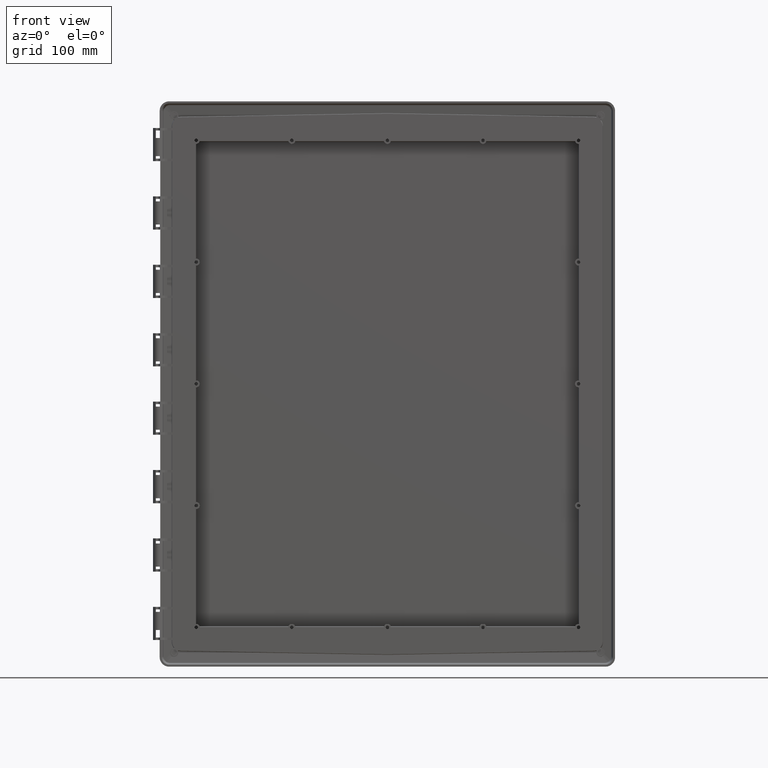
[diagram: clean part render]
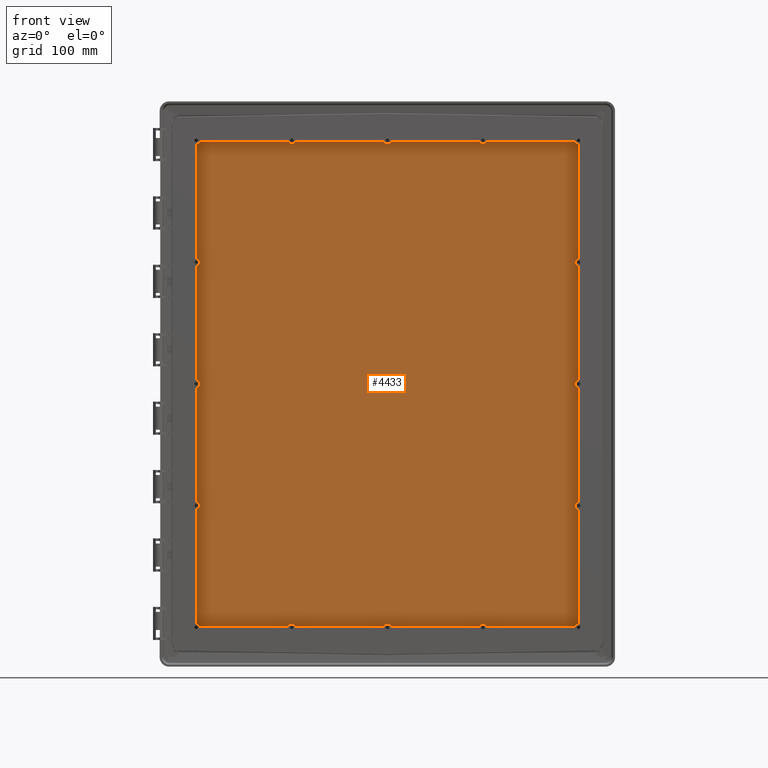
[diagram: same view with one face highlighted and labeled with its STEP entity id]
A machine part, front view. The second image highlights one B-rep face of the part: STEP entity #4433.
In plain terms, the highlighted planar face has unit normal (0, 1, 0).
Its self-contained STEP definition (entity closure, byte-faithful):
#93 = AXIS2_PLACEMENT_3D ( 'NONE', #5521, #3291, #1086 ) ;
#129 = CARTESIAN_POINT ( 'NONE',  ( -186.5000000000000000, 26.39999999999999900, 121.0000000000000000 ) ) ;
#279 = AXIS2_PLACEMENT_3D ( 'NONE', #19637, #10863, #8642 ) ;
#508 = CARTESIAN_POINT ( 'NONE',  ( 189.9317312209834900, 26.39999999999999900, -238.5006658670810100 ) ) ;
#590 = CARTESIAN_POINT ( 'NONE',  ( -186.7042932951999900, 26.39999999999999900, -240.8217312209999900 ) ) ;
#615 = CARTESIAN_POINT ( 'NONE',  ( 0.0000000000000000000, 26.39999999999999900, -242.0000000000000000 ) ) ;
#791 = CARTESIAN_POINT ( 'NONE',  ( -91.70429329514972500, 26.39999999999999900, 240.8217312209834800 ) ) ;
#892 = DIRECTION ( 'NONE',  ( 0.0000000000000000000, 1.000000000000000000, 0.0000000000000000000 ) ) ;
#1014 = ORIENTED_EDGE ( 'NONE', *, *, #15368, .F. ) ;
#1057 = DIRECTION ( 'NONE',  ( 0.0000000000000000000, 1.000000000000000000, 0.0000000000000000000 ) ) ;
#1086 = DIRECTION ( 'NONE',  ( 0.01950536543805190700, 0.0000000000000000000, 0.9998097522624631600 ) ) ;
#1118 = VECTOR ( 'NONE', #10152, 1000.000000000000000 ) ;
#1220 = ORIENTED_EDGE ( 'NONE', *, *, #4466, .F. ) ;
#1332 = EDGE_CURVE ( 'NONE', #5592, #14996, #8986, .T. ) ;
#1475 = ORIENTED_EDGE ( 'NONE', *, *, #1332, .F. ) ;
#1510 = ORIENTED_EDGE ( 'NONE', *, *, #6775, .T. ) ;
#1543 = CARTESIAN_POINT ( 'NONE',  ( 189.9317312209834700, 26.39999999999999900, 117.5006658670810500 ) ) ;
#1606 = DIRECTION ( 'NONE',  ( 0.01950536543805190700, 0.0000000000000000000, -0.9998097522624631600 ) ) ;
#1607 = CIRCLE ( 'NONE', #7530, 3.500000000000000000 ) ;
#1706 = ORIENTED_EDGE ( 'NONE', *, *, #6682, .T. ) ;
#1752 = AXIS2_PLACEMENT_3D ( 'NONE', #1792, #10174, #7915 ) ;
#1790 = AXIS2_PLACEMENT_3D ( 'NONE', #21141, #5775, #3568 ) ;
#1792 = CARTESIAN_POINT ( 'NONE',  ( -95.00000000000000000, 26.39999999999999900, -242.0000000000000000 ) ) ;
#1797 = DIRECTION ( 'NONE',  ( 0.9416304870983763800, 0.0000000000000000000, -0.3366482225808931100 ) ) ;
#1821 = EDGE_CURVE ( 'NONE', #5917, #5980, #20546, .T. ) ;
#1971 = DIRECTION ( 'NONE',  ( 1.000000000000000000, 0.0000000000000000000, 0.0000000000000000000 ) ) ;
#2011 = CARTESIAN_POINT ( 'NONE',  ( -3.295706704850258200, 26.39999999999999900, -240.8217312209834800 ) ) ;
#2033 = EDGE_CURVE ( 'NONE', #13864, #7621, #18724, .T. ) ;
#2148 = DIRECTION ( 'NONE',  ( -0.01950536543805185500, 0.0000000000000000000, -0.9998097522624631600 ) ) ;
#2166 = DIRECTION ( 'NONE',  ( 0.0000000000000000000, 1.000000000000000000, 0.0000000000000000000 ) ) ;
#2187 = CARTESIAN_POINT ( 'NONE',  ( 190.0000000000000000, 26.39999999999999900, 0.0000000000000000000 ) ) ;
#2560 = LINE ( 'NONE', #8696, #5410 ) ;
#2664 = VECTOR ( 'NONE', #9492, 1000.000000000000000 ) ;
#2708 = DIRECTION ( 'NONE',  ( 0.01950536543805185500, 0.0000000000000000000, 0.9998097522624631600 ) ) ;
#2800 = AXIS2_PLACEMENT_3D ( 'NONE', #16634, #14404, #12193 ) ;
#2810 = LINE ( 'NONE', #590, #4162 ) ;
#2851 = CARTESIAN_POINT ( 'NONE',  ( 189.9317312209834900, 26.39999999999999900, -124.4993341329189500 ) ) ;
#2901 = AXIS2_PLACEMENT_3D ( 'NONE', #615, #13405, #11193 ) ;
#2913 = CIRCLE ( 'NONE', #13986, 3.499999999999992000 ) ;
#2988 = AXIS2_PLACEMENT_3D ( 'NONE', #8384, #6149, #3949 ) ;
#3103 = CARTESIAN_POINT ( 'NONE',  ( -190.0000000000000000, 26.39999999999999900, 121.0000000000000000 ) ) ;
#3116 = FACE_OUTER_BOUND ( 'NONE', #16223, .T. ) ;
#3210 = DIRECTION ( 'NONE',  ( -0.01950536543805182800, 0.0000000000000000000, -0.9998097522624631600 ) ) ;
#3216 = ORIENTED_EDGE ( 'NONE', *, *, #17275, .T. ) ;
#3246 = CARTESIAN_POINT ( 'NONE',  ( -189.9317312209834700, 26.39999999999999900, -238.5006658670810400 ) ) ;
#3291 = DIRECTION ( 'NONE',  ( 0.0000000000000000000, 1.000000000000000000, 0.0000000000000000000 ) ) ;
#3309 = VECTOR ( 'NONE', #8760, 1000.000000000000000 ) ;
#3352 = DIRECTION ( 'NONE',  ( -0.9416304870983763800, 0.0000000000000000000, -0.3366482225808931100 ) ) ;
#3554 = EDGE_CURVE ( 'NONE', #5980, #6071, #19289, .T. ) ;
#3568 = DIRECTION ( 'NONE',  ( -0.9416304870983763800, 0.0000000000000000000, 0.3366482225808931100 ) ) ;
#3569 = VECTOR ( 'NONE', #14982, 1000.000000000000000 ) ;
#3740 = EDGE_CURVE ( 'NONE', #7561, #14431, #4659, .T. ) ;
#3830 = DIRECTION ( 'NONE',  ( 0.0000000000000000000, -1.000000000000000000, 0.0000000000000000000 ) ) ;
#3949 = DIRECTION ( 'NONE',  ( -0.01950536543803597200, 0.0000000000000000000, -0.9998097522624636000 ) ) ;
#4016 = DIRECTION ( 'NONE',  ( 0.0000000000000000000, 1.000000000000000000, 0.0000000000000000000 ) ) ;
#4048 = EDGE_CURVE ( 'NONE', #4698, #4637, #2810, .T. ) ;
#4162 = VECTOR ( 'NONE', #19931, 1000.000000000000000 ) ;
#4192 = CARTESIAN_POINT ( 'NONE',  ( -91.70429329515999900, 26.39999999999999900, -240.8217312209999900 ) ) ;
#4193 = CARTESIAN_POINT ( 'NONE',  ( -189.9317312209834900, 26.39999999999999900, 117.5006658670810500 ) ) ;
#4230 = CIRCLE ( 'NONE', #2901, 3.500000000000001800 ) ;
#4290 = ORIENTED_EDGE ( 'NONE', *, *, #16830, .T. ) ;
#4387 = DIRECTION ( 'NONE',  ( 0.0000000000000000000, 0.0000000000000000000, -1.000000000000000000 ) ) ;
#4413 = ORIENTED_EDGE ( 'NONE', *, *, #8150, .F. ) ;
#4433 = ADVANCED_FACE ( 'NONE', ( #3116 ), #18777, .F. ) ;
#4466 = EDGE_CURVE ( 'NONE', #6912, #6698, #20411, .T. ) ;
#4497 = ORIENTED_EDGE ( 'NONE', *, *, #6413, .T. ) ;
#4637 = VERTEX_POINT ( 'NONE', #20037 ) ;
#4659 = LINE ( 'NONE', #8583, #5397 ) ;
#4698 = VERTEX_POINT ( 'NONE', #19036 ) ;
#4719 = EDGE_CURVE ( 'NONE', #5134, #5362, #18928, .T. ) ;
#4782 = VERTEX_POINT ( 'NONE', #2011 ) ;
#4788 = CIRCLE ( 'NONE', #19442, 3.500000000000000900 ) ;
#4817 = CARTESIAN_POINT ( 'NONE',  ( -189.9317312209834900, 26.39999999999999900, -117.5006658670810500 ) ) ;
#4926 = DIRECTION ( 'NONE',  ( 0.0000000000000000000, 1.000000000000000000, 0.0000000000000000000 ) ) ;
#4962 = VERTEX_POINT ( 'NONE', #12814 ) ;
#4995 = CARTESIAN_POINT ( 'NONE',  ( 91.70429329514972500, 26.39999999999999900, 240.8217312209834800 ) ) ;
#5134 = VERTEX_POINT ( 'NONE', #12546 ) ;
#5163 = CIRCLE ( 'NONE', #279, 3.500000000000004900 ) ;
#5195 = VERTEX_POINT ( 'NONE', #6532 ) ;
#5264 = CIRCLE ( 'NONE', #14597, 3.500000000000000900 ) ;
#5304 = EDGE_CURVE ( 'NONE', #14845, #14996, #17398, .T. ) ;
#5321 = VERTEX_POINT ( 'NONE', #13977 ) ;
#5343 = ORIENTED_EDGE ( 'NONE', *, *, #6559, .T. ) ;
#5362 = VERTEX_POINT ( 'NONE', #15138 ) ;
#5397 = VECTOR ( 'NONE', #6337, 1000.000000000000000 ) ;
#5410 = VECTOR ( 'NONE', #6448, 1000.000000000000000 ) ;
#5430 = ORIENTED_EDGE ( 'NONE', *, *, #3740, .F. ) ;
#5432 = DIRECTION ( 'NONE',  ( 0.0000000000000000000, 1.000000000000000000, 0.0000000000000000000 ) ) ;
#5467 = EDGE_CURVE ( 'NONE', #4962, #4782, #6384, .T. ) ;
#5490 = CARTESIAN_POINT ( 'NONE',  ( -190.0000000000000000, 26.39999999999999900, 0.0000000000000000000 ) ) ;
#5521 = CARTESIAN_POINT ( 'NONE',  ( -190.0000000000000000, 26.39999999999999900, -242.0000000000000000 ) ) ;
#5540 = EDGE_CURVE ( 'NONE', #7368, #7290, #19739, .T. ) ;
#5580 = DIRECTION ( 'NONE',  ( 0.0000000000000000000, -1.000000000000000000, 0.0000000000000000000 ) ) ;
#5592 = VERTEX_POINT ( 'NONE', #3246 ) ;
#5635 = VERTEX_POINT ( 'NONE', #508 ) ;
#5720 = CARTESIAN_POINT ( 'NONE',  ( -189.9317312209834700, 26.39999999999999900, 238.5006658670810400 ) ) ;
#5736 = DIRECTION ( 'NONE',  ( -0.9416304870983768200, 0.0000000000000000000, 0.3366482225808918300 ) ) ;
#5772 = VERTEX_POINT ( 'NONE', #2851 ) ;
#5775 = DIRECTION ( 'NONE',  ( 0.0000000000000000000, 1.000000000000000000, 0.0000000000000000000 ) ) ;
#5810 = VERTEX_POINT ( 'NONE', #10702 ) ;
#5917 = VERTEX_POINT ( 'NONE', #6362 ) ;
#5980 = VERTEX_POINT ( 'NONE', #7547 ) ;
#6018 = CIRCLE ( 'NONE', #2988, 3.500000000000004900 ) ;
#6038 = CARTESIAN_POINT ( 'NONE',  ( -190.0000000000000000, 26.39999999999999900, 242.0000000000000000 ) ) ;
#6071 = VERTEX_POINT ( 'NONE', #1543 ) ;
#6149 = DIRECTION ( 'NONE',  ( 0.0000000000000000000, 1.000000000000000000, 0.0000000000000000000 ) ) ;
#6177 = DIRECTION ( 'NONE',  ( 0.0000000000000000000, 0.0000000000000000000, -1.000000000000000000 ) ) ;
#6273 = VERTEX_POINT ( 'NONE', #17927 ) ;
#6332 = VERTEX_POINT ( 'NONE', #8584 ) ;
#6337 = DIRECTION ( 'NONE',  ( 0.0000000000000000000, 0.0000000000000000000, 1.000000000000000000 ) ) ;
#6362 = CARTESIAN_POINT ( 'NONE',  ( 189.9317312209834700, 26.39999999999999900, -3.499334132918946200 ) ) ;
#6384 = LINE ( 'NONE', #4192, #12672 ) ;
#6413 = EDGE_CURVE ( 'NONE', #6071, #6273, #16411, .T. ) ;
#6448 = DIRECTION ( 'NONE',  ( -1.000000000000000000, 0.0000000000000000000, 0.0000000000000000000 ) ) ;
#6477 = VERTEX_POINT ( 'NONE', #18290 ) ;
#6532 = CARTESIAN_POINT ( 'NONE',  ( 3.295706704850258600, 26.39999999999999900, -240.8217312209834800 ) ) ;
#6559 = EDGE_CURVE ( 'NONE', #6912, #6958, #16977, .T. ) ;
#6571 = VERTEX_POINT ( 'NONE', #19161 ) ;
#6584 = CARTESIAN_POINT ( 'NONE',  ( 189.9317312210000100, 26.39999999999999900, -3.499334132919000400 ) ) ;
#6612 = VECTOR ( 'NONE', #14911, 1000.000000000000000 ) ;
#6639 = LINE ( 'NONE', #17218, #3569 ) ;
#6682 = EDGE_CURVE ( 'NONE', #7516, #14292, #16267, .T. ) ;
#6698 = VERTEX_POINT ( 'NONE', #4995 ) ;
#6775 = EDGE_CURVE ( 'NONE', #5195, #5134, #16214, .T. ) ;
#6912 = VERTEX_POINT ( 'NONE', #8249 ) ;
#6958 = VERTEX_POINT ( 'NONE', #9456 ) ;
#7084 = VERTEX_POINT ( 'NONE', #791 ) ;
#7095 = ORIENTED_EDGE ( 'NONE', *, *, #5540, .F. ) ;
#7147 = CARTESIAN_POINT ( 'NONE',  ( -190.0000000000000000, 26.39999999999999900, 0.0000000000000000000 ) ) ;
#7266 = ORIENTED_EDGE ( 'NONE', *, *, #21147, .F. ) ;
#7290 = VERTEX_POINT ( 'NONE', #17722 ) ;
#7325 = ORIENTED_EDGE ( 'NONE', *, *, #5467, .T. ) ;
#7368 = VERTEX_POINT ( 'NONE', #10083 ) ;
#7400 = CARTESIAN_POINT ( 'NONE',  ( -189.9317312209834900, 26.39999999999999900, -124.4993341329189500 ) ) ;
#7433 = VERTEX_POINT ( 'NONE', #5720 ) ;
#7516 = VERTEX_POINT ( 'NONE', #15253 ) ;
#7530 = AXIS2_PLACEMENT_3D ( 'NONE', #7794, #5580, #3352 ) ;
#7547 = CARTESIAN_POINT ( 'NONE',  ( 189.9317312209834900, 26.39999999999999900, 3.499334132918946700 ) ) ;
#7561 = VERTEX_POINT ( 'NONE', #14211 ) ;
#7621 = VERTEX_POINT ( 'NONE', #4817 ) ;
#7648 = CARTESIAN_POINT ( 'NONE',  ( 190.0000000000000000, 26.39999999999999900, 121.0000000000000000 ) ) ;
#7794 = CARTESIAN_POINT ( 'NONE',  ( -95.00000000000000000, 26.39999999999999900, 242.0000000000000000 ) ) ;
#7915 = DIRECTION ( 'NONE',  ( -0.9416304870983763800, 0.0000000000000000000, 0.3366482225808931100 ) ) ;
#7959 = DIRECTION ( 'NONE',  ( 0.0000000000000000000, 1.000000000000000000, 0.0000000000000000000 ) ) ;
#8028 = VECTOR ( 'NONE', #4387, 1000.000000000000000 ) ;
#8107 = DIRECTION ( 'NONE',  ( -0.01950536543805190700, 0.0000000000000000000, -0.9998097522624631600 ) ) ;
#8150 = EDGE_CURVE ( 'NONE', #5321, #5362, #2560, .T. ) ;
#8249 = CARTESIAN_POINT ( 'NONE',  ( 3.295706704850258200, 26.39999999999999900, 240.8217312209834800 ) ) ;
#8272 = ORIENTED_EDGE ( 'NONE', *, *, #10948, .T. ) ;
#8384 = CARTESIAN_POINT ( 'NONE',  ( 190.0000000000000000, 26.39999999999999900, -121.0000000000000000 ) ) ;
#8417 = CARTESIAN_POINT ( 'NONE',  ( 189.9317312210000100, 26.39999999999999900, 238.5006658671000000 ) ) ;
#8457 = CARTESIAN_POINT ( 'NONE',  ( 95.00000000000000000, 26.39999999999999900, 242.0000000000000000 ) ) ;
#8537 = ORIENTED_EDGE ( 'NONE', *, *, #18125, .T. ) ;
#8583 = CARTESIAN_POINT ( 'NONE',  ( -189.9317312210000100, 26.39999999999999900, 3.499334132919000400 ) ) ;
#8584 = CARTESIAN_POINT ( 'NONE',  ( 189.9317312209834700, 26.39999999999999900, 238.5006658670810400 ) ) ;
#8642 = DIRECTION ( 'NONE',  ( 0.01950536543803597200, 0.0000000000000000000, 0.9998097522624636000 ) ) ;
#8696 = CARTESIAN_POINT ( 'NONE',  ( 186.7042932951999900, 26.39999999999999900, -240.8217312209999900 ) ) ;
#8760 = DIRECTION ( 'NONE',  ( 1.000000000000000000, 0.0000000000000000000, 0.0000000000000000000 ) ) ;
#8823 = EDGE_CURVE ( 'NONE', #5592, #4698, #14334, .T. ) ;
#8829 = LINE ( 'NONE', #6584, #8028 ) ;
#8932 = ORIENTED_EDGE ( 'NONE', *, *, #4719, .T. ) ;
#8944 = DIRECTION ( 'NONE',  ( 0.0000000000000000000, 0.0000000000000000000, 1.000000000000000000 ) ) ;
#8964 = CARTESIAN_POINT ( 'NONE',  ( -189.9317312210000100, 26.39999999999999900, -238.5006658671000000 ) ) ;
#8986 = LINE ( 'NONE', #8964, #20238 ) ;
#9400 = CIRCLE ( 'NONE', #12710, 3.499999999999992000 ) ;
#9456 = CARTESIAN_POINT ( 'NONE',  ( -3.295706704850258600, 26.39999999999999900, 240.8217312209834800 ) ) ;
#9492 = DIRECTION ( 'NONE',  ( 1.000000000000000000, 0.0000000000000000000, 0.0000000000000000000 ) ) ;
#10062 = ORIENTED_EDGE ( 'NONE', *, *, #12412, .T. ) ;
#10083 = CARTESIAN_POINT ( 'NONE',  ( -186.7042932951497700, 26.39999999999999900, 240.8217312209834800 ) ) ;
#10100 = DIRECTION ( 'NONE',  ( 0.01950536543803597200, 0.0000000000000000000, 0.9998097522624636000 ) ) ;
#10152 = DIRECTION ( 'NONE',  ( 0.0000000000000000000, 0.0000000000000000000, 1.000000000000000000 ) ) ;
#10174 = DIRECTION ( 'NONE',  ( 0.0000000000000000000, 1.000000000000000000, 0.0000000000000000000 ) ) ;
#10219 = CARTESIAN_POINT ( 'NONE',  ( 190.0000000000000000, 26.39999999999999900, -242.0000000000000000 ) ) ;
#10258 = ORIENTED_EDGE ( 'NONE', *, *, #16753, .T. ) ;
#10290 = EDGE_CURVE ( 'NONE', #5917, #5810, #8829, .T. ) ;
#10313 = ORIENTED_EDGE ( 'NONE', *, *, #12815, .T. ) ;
#10363 = DIRECTION ( 'NONE',  ( 0.0000000000000000000, 1.000000000000000000, 0.0000000000000000000 ) ) ;
#10644 = LINE ( 'NONE', #8417, #18921 ) ;
#10702 = CARTESIAN_POINT ( 'NONE',  ( 189.9317312209834900, 26.39999999999999900, -117.5006658670810500 ) ) ;
#10748 = CIRCLE ( 'NONE', #16406, 3.500000000000000000 ) ;
#10858 = VECTOR ( 'NONE', #13505, 1000.000000000000000 ) ;
#10863 = DIRECTION ( 'NONE',  ( 0.0000000000000000000, 1.000000000000000000, 0.0000000000000000000 ) ) ;
#10893 = DIRECTION ( 'NONE',  ( 0.9416304870983763800, 0.0000000000000000000, -0.3366482225808929400 ) ) ;
#10948 = EDGE_CURVE ( 'NONE', #6477, #6571, #17902, .T. ) ;
#10970 = CARTESIAN_POINT ( 'NONE',  ( -186.7042932951999900, 26.39999999999999900, 240.8217312209999900 ) ) ;
#11117 = CIRCLE ( 'NONE', #18582, 3.500000000000013300 ) ;
#11150 = EDGE_CURVE ( 'NONE', #4637, #4962, #12377, .T. ) ;
#11193 = DIRECTION ( 'NONE',  ( -0.9416304870983763800, 0.0000000000000000000, 0.3366482225808929400 ) ) ;
#11242 = CIRCLE ( 'NONE', #16843, 3.500000000000006200 ) ;
#11337 = CARTESIAN_POINT ( 'NONE',  ( -186.5000000000000000, 26.39999999999999900, -121.0000000000000000 ) ) ;
#11509 = ORIENTED_EDGE ( 'NONE', *, *, #5304, .T. ) ;
#11666 = CARTESIAN_POINT ( 'NONE',  ( 3.295706704844000100, 26.39999999999999900, 240.8217312209999900 ) ) ;
#11780 = DIRECTION ( 'NONE',  ( 1.000000000000000000, 0.0000000000000000000, 0.0000000000000000000 ) ) ;
#12178 = CARTESIAN_POINT ( 'NONE',  ( -190.0000000000000000, 26.39999999999999900, 121.0000000000000000 ) ) ;
#12193 = DIRECTION ( 'NONE',  ( 0.0000000000000000000, 0.0000000000000000000, 1.000000000000000000 ) ) ;
#12284 = DIRECTION ( 'NONE',  ( 0.0000000000000000000, 1.000000000000000000, 0.0000000000000000000 ) ) ;
#12336 = CARTESIAN_POINT ( 'NONE',  ( -189.9317312210000100, 26.39999999999999900, 124.4993341329000000 ) ) ;
#12377 = CIRCLE ( 'NONE', #1752, 3.500000000000000000 ) ;
#12412 = EDGE_CURVE ( 'NONE', #5321, #5635, #11117, .T. ) ;
#12543 = CARTESIAN_POINT ( 'NONE',  ( 190.0000000000000000, 26.39999999999999900, 242.0000000000000000 ) ) ;
#12546 = CARTESIAN_POINT ( 'NONE',  ( 91.70429329514973900, 26.39999999999999900, -240.8217312209834800 ) ) ;
#12621 = VECTOR ( 'NONE', #14385, 1000.000000000000000 ) ;
#12672 = VECTOR ( 'NONE', #1971, 1000.000000000000000 ) ;
#12710 = AXIS2_PLACEMENT_3D ( 'NONE', #6038, #3830, #1606 ) ;
#12814 = CARTESIAN_POINT ( 'NONE',  ( -91.70429329514972500, 26.39999999999999900, -240.8217312209834800 ) ) ;
#12815 = EDGE_CURVE ( 'NONE', #14292, #14431, #11242, .T. ) ;
#12967 = EDGE_CURVE ( 'NONE', #6571, #6698, #10748, .T. ) ;
#13092 = DIRECTION ( 'NONE',  ( 0.0000000000000000000, 1.000000000000000000, 0.0000000000000000000 ) ) ;
#13139 = ORIENTED_EDGE ( 'NONE', *, *, #13744, .F. ) ;
#13166 = ORIENTED_EDGE ( 'NONE', *, *, #10290, .F. ) ;
#13405 = DIRECTION ( 'NONE',  ( 0.0000000000000000000, 1.000000000000000000, 0.0000000000000000000 ) ) ;
#13505 = DIRECTION ( 'NONE',  ( -1.000000000000000000, 0.0000000000000000000, 0.0000000000000000000 ) ) ;
#13698 = VERTEX_POINT ( 'NONE', #17640 ) ;
#13744 = EDGE_CURVE ( 'NONE', #7433, #7368, #9400, .T. ) ;
#13749 = EDGE_CURVE ( 'NONE', #6958, #7084, #18760, .T. ) ;
#13864 = VERTEX_POINT ( 'NONE', #19518 ) ;
#13964 = VECTOR ( 'NONE', #14353, 1000.000000000000000 ) ;
#13977 = CARTESIAN_POINT ( 'NONE',  ( 186.7042932951497700, 26.39999999999999900, -240.8217312209834800 ) ) ;
#13986 = AXIS2_PLACEMENT_3D ( 'NONE', #12543, #10363, #8107 ) ;
#14003 = CARTESIAN_POINT ( 'NONE',  ( 3.295706704844000100, 26.39999999999999900, -240.8217312209999900 ) ) ;
#14052 = ORIENTED_EDGE ( 'NONE', *, *, #1821, .T. ) ;
#14211 = CARTESIAN_POINT ( 'NONE',  ( -189.9317312209834700, 26.39999999999999900, 3.499334132918946200 ) ) ;
#14292 = VERTEX_POINT ( 'NONE', #129 ) ;
#14334 = CIRCLE ( 'NONE', #93, 3.499999999999992000 ) ;
#14353 = DIRECTION ( 'NONE',  ( 0.0000000000000000000, 0.0000000000000000000, -1.000000000000000000 ) ) ;
#14385 = DIRECTION ( 'NONE',  ( -1.000000000000000000, 0.0000000000000000000, 0.0000000000000000000 ) ) ;
#14404 = DIRECTION ( 'NONE',  ( 0.0000000000000000000, 1.000000000000000000, 0.0000000000000000000 ) ) ;
#14431 = VERTEX_POINT ( 'NONE', #4193 ) ;
#14487 = CARTESIAN_POINT ( 'NONE',  ( -190.0000000000000000, 26.39999999999999900, -121.0000000000000000 ) ) ;
#14535 = LINE ( 'NONE', #12336, #1118 ) ;
#14597 = AXIS2_PLACEMENT_3D ( 'NONE', #5490, #1057, #20369 ) ;
#14727 = ORIENTED_EDGE ( 'NONE', *, *, #11150, .T. ) ;
#14845 = VERTEX_POINT ( 'NONE', #11337 ) ;
#14911 = DIRECTION ( 'NONE',  ( 0.0000000000000000000, 0.0000000000000000000, 1.000000000000000000 ) ) ;
#14982 = DIRECTION ( 'NONE',  ( 0.0000000000000000000, 0.0000000000000000000, 1.000000000000000000 ) ) ;
#14996 = VERTEX_POINT ( 'NONE', #7400 ) ;
#15138 = CARTESIAN_POINT ( 'NONE',  ( 98.29570670485027500, 26.39999999999999900, -240.8217312209834800 ) ) ;
#15201 = AXIS2_PLACEMENT_3D ( 'NONE', #2187, #2166, #2148 ) ;
#15253 = CARTESIAN_POINT ( 'NONE',  ( -189.9317312209834700, 26.39999999999999900, 124.4993341329189500 ) ) ;
#15270 = VECTOR ( 'NONE', #11780, 1000.000000000000000 ) ;
#15311 = CARTESIAN_POINT ( 'NONE',  ( 0.0000000000000000000, 26.39999999999999900, 242.0000000000000000 ) ) ;
#15368 = EDGE_CURVE ( 'NONE', #7516, #7433, #14535, .T. ) ;
#15713 = ORIENTED_EDGE ( 'NONE', *, *, #17673, .T. ) ;
#15717 = CARTESIAN_POINT ( 'NONE',  ( 186.7042932951999900, 26.39999999999999900, 240.8217312209999900 ) ) ;
#16017 = EDGE_CURVE ( 'NONE', #5772, #5810, #6018, .T. ) ;
#16214 = LINE ( 'NONE', #14003, #15270 ) ;
#16223 = EDGE_LOOP ( 'NONE', ( #3216, #18747, #13166, #14052, #20365, #4497, #21052, #17396, #8272, #17858, #1220, #5343, #16731, #7266, #7095, #13139, #1014, #1706, #10313, #5430, #4290, #15713, #17894, #10258, #11509, #1475, #20326, #19132, #14727, #7325, #8537, #1510, #8932, #4413, #10062 ) ) ;
#16267 = CIRCLE ( 'NONE', #17156, 3.500000000000006200 ) ;
#16406 = AXIS2_PLACEMENT_3D ( 'NONE', #8457, #4016, #1797 ) ;
#16411 = CIRCLE ( 'NONE', #18424, 3.500000000000006200 ) ;
#16576 = CARTESIAN_POINT ( 'NONE',  ( -189.9317312210000100, 26.39999999999999900, -3.499334132919000400 ) ) ;
#16614 = CARTESIAN_POINT ( 'NONE',  ( -3.295706704844000100, 26.39999999999999900, 240.8217312209999900 ) ) ;
#16634 = CARTESIAN_POINT ( 'NONE',  ( 157.0999999999999900, 26.39999999999999900, 260.8000000000000100 ) ) ;
#16731 = ORIENTED_EDGE ( 'NONE', *, *, #13749, .T. ) ;
#16753 = EDGE_CURVE ( 'NONE', #7621, #14845, #5163, .T. ) ;
#16827 = AXIS2_PLACEMENT_3D ( 'NONE', #14487, #12284, #10100 ) ;
#16830 = EDGE_CURVE ( 'NONE', #7561, #13698, #5264, .T. ) ;
#16843 = AXIS2_PLACEMENT_3D ( 'NONE', #3103, #892, #20219 ) ;
#16977 = CIRCLE ( 'NONE', #17169, 3.500000000000001800 ) ;
#17147 = CARTESIAN_POINT ( 'NONE',  ( 189.9317312210000100, 26.39999999999999900, 3.499334132919000400 ) ) ;
#17156 = AXIS2_PLACEMENT_3D ( 'NONE', #12178, #20399, #18254 ) ;
#17169 = AXIS2_PLACEMENT_3D ( 'NONE', #15311, #13092, #10893 ) ;
#17218 = CARTESIAN_POINT ( 'NONE',  ( 189.9317312210000100, 26.39999999999999900, -238.5006658671000000 ) ) ;
#17275 = EDGE_CURVE ( 'NONE', #5635, #5772, #6639, .T. ) ;
#17396 = ORIENTED_EDGE ( 'NONE', *, *, #19766, .T. ) ;
#17398 = CIRCLE ( 'NONE', #16827, 3.500000000000004900 ) ;
#17640 = CARTESIAN_POINT ( 'NONE',  ( -186.5000000000000000, 26.39999999999999900, 0.0000000000000000000 ) ) ;
#17673 = EDGE_CURVE ( 'NONE', #13698, #13864, #4788, .T. ) ;
#17722 = CARTESIAN_POINT ( 'NONE',  ( -98.29570670485026100, 26.39999999999999900, 240.8217312209834800 ) ) ;
#17858 = ORIENTED_EDGE ( 'NONE', *, *, #12967, .T. ) ;
#17894 = ORIENTED_EDGE ( 'NONE', *, *, #2033, .T. ) ;
#17902 = LINE ( 'NONE', #15717, #10858 ) ;
#17927 = CARTESIAN_POINT ( 'NONE',  ( 189.9317312209834900, 26.39999999999999900, 124.4993341329189500 ) ) ;
#18125 = EDGE_CURVE ( 'NONE', #4782, #5195, #4230, .T. ) ;
#18254 = DIRECTION ( 'NONE',  ( 0.01950536543805182800, 0.0000000000000000000, 0.9998097522624631600 ) ) ;
#18290 = CARTESIAN_POINT ( 'NONE',  ( 186.7042932951497700, 26.39999999999999900, 240.8217312209834800 ) ) ;
#18424 = AXIS2_PLACEMENT_3D ( 'NONE', #7648, #5432, #3210 ) ;
#18582 = AXIS2_PLACEMENT_3D ( 'NONE', #10219, #7959, #5736 ) ;
#18631 = EDGE_CURVE ( 'NONE', #6332, #6273, #10644, .T. ) ;
#18724 = LINE ( 'NONE', #16576, #13964 ) ;
#18747 = ORIENTED_EDGE ( 'NONE', *, *, #16017, .T. ) ;
#18760 = LINE ( 'NONE', #16614, #12621 ) ;
#18777 = PLANE ( 'NONE',  #2800 ) ;
#18921 = VECTOR ( 'NONE', #6177, 1000.000000000000000 ) ;
#18928 = CIRCLE ( 'NONE', #1790, 3.500000000000000000 ) ;
#19036 = CARTESIAN_POINT ( 'NONE',  ( -186.7042932951497700, 26.39999999999999900, -240.8217312209834800 ) ) ;
#19132 = ORIENTED_EDGE ( 'NONE', *, *, #4048, .T. ) ;
#19161 = CARTESIAN_POINT ( 'NONE',  ( 98.29570670485026100, 26.39999999999999900, 240.8217312209834800 ) ) ;
#19289 = LINE ( 'NONE', #17147, #6612 ) ;
#19442 = AXIS2_PLACEMENT_3D ( 'NONE', #7147, #4926, #2708 ) ;
#19518 = CARTESIAN_POINT ( 'NONE',  ( -189.9317312209834900, 26.39999999999999900, -3.499334132918946700 ) ) ;
#19637 = CARTESIAN_POINT ( 'NONE',  ( -190.0000000000000000, 26.39999999999999900, -121.0000000000000000 ) ) ;
#19739 = LINE ( 'NONE', #10970, #3309 ) ;
#19766 = EDGE_CURVE ( 'NONE', #6332, #6477, #2913, .T. ) ;
#19931 = DIRECTION ( 'NONE',  ( 1.000000000000000000, 0.0000000000000000000, 0.0000000000000000000 ) ) ;
#20037 = CARTESIAN_POINT ( 'NONE',  ( -98.29570670485026100, 26.39999999999999900, -240.8217312209834800 ) ) ;
#20219 = DIRECTION ( 'NONE',  ( 0.01950536543805182800, 0.0000000000000000000, 0.9998097522624631600 ) ) ;
#20238 = VECTOR ( 'NONE', #8944, 1000.000000000000000 ) ;
#20326 = ORIENTED_EDGE ( 'NONE', *, *, #8823, .T. ) ;
#20365 = ORIENTED_EDGE ( 'NONE', *, *, #3554, .T. ) ;
#20369 = DIRECTION ( 'NONE',  ( 0.01950536543805185500, 0.0000000000000000000, 0.9998097522624631600 ) ) ;
#20399 = DIRECTION ( 'NONE',  ( 0.0000000000000000000, 1.000000000000000000, 0.0000000000000000000 ) ) ;
#20411 = LINE ( 'NONE', #11666, #2664 ) ;
#20546 = CIRCLE ( 'NONE', #15201, 3.500000000000000900 ) ;
#21052 = ORIENTED_EDGE ( 'NONE', *, *, #18631, .F. ) ;
#21141 = CARTESIAN_POINT ( 'NONE',  ( 95.00000000000000000, 26.39999999999999900, -242.0000000000000000 ) ) ;
#21147 = EDGE_CURVE ( 'NONE', #7290, #7084, #1607, .T. ) ;